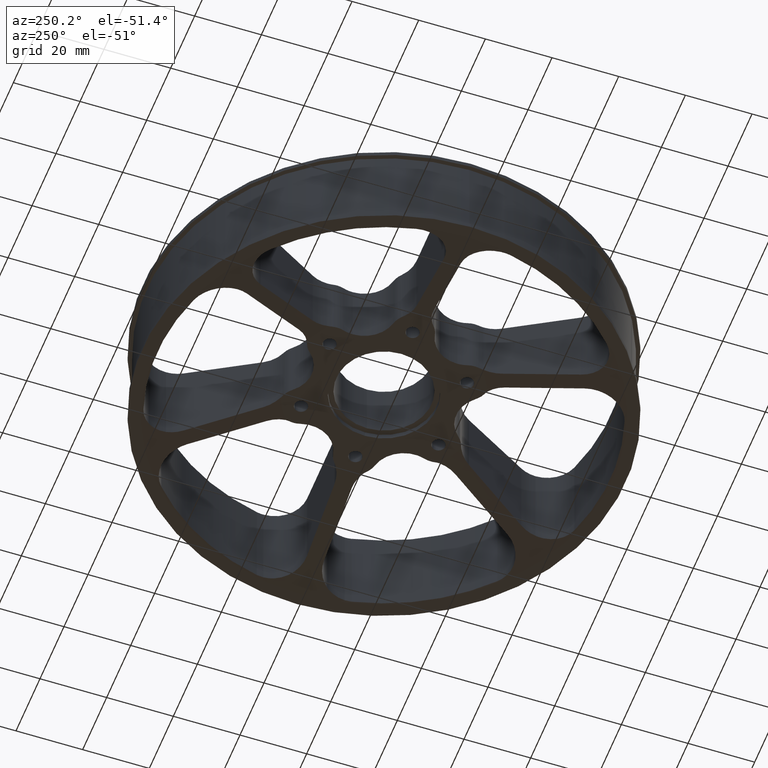
[diagram: clean part render]
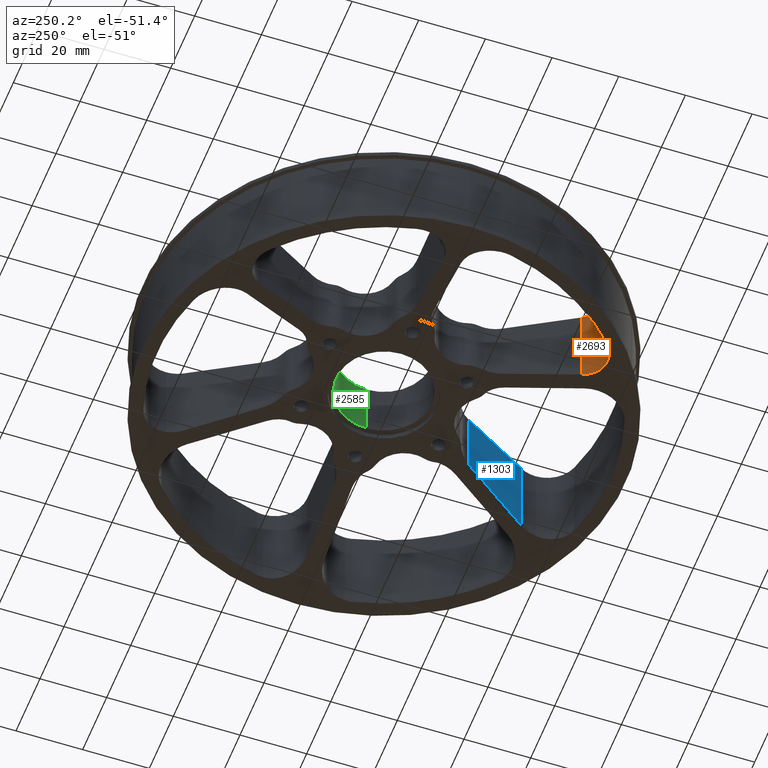
[diagram: same view with three faces highlighted in distinct colors, each labeled with its STEP entity id]
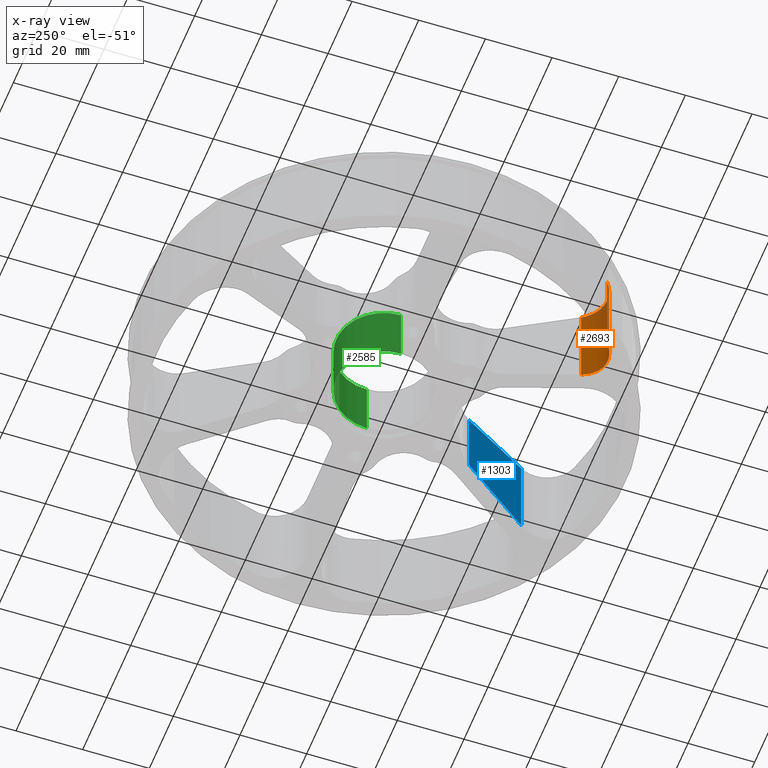
[diagram: x-ray of the same camera — body ghosted, the three highlighted faces saturated]
A machine part, auxiliary view with three faces highlighted in distinct colors.
The next image is the same camera in x-ray (body ghosted, the three faces saturated) — at least one of them is partly hidden behind the body in this view.
Their STEP definitions:

[orange] entity #2693 — the highlighted cylindrical surface (edge-blend (fillet) strip) has radius 9.652 mm, axis along (-0, -0, 1).
#116 = CARTESIAN_POINT ( 'NONE',  ( -1.537813510787212845, -1.703571133249299985, 1.125000000000000000 ) ) ;
#159 = CARTESIAN_POINT ( 'NONE',  ( -1.369121187961378494, -2.044360874800086769, 0.05758182101409862336 ) ) ;
#173 = CARTESIAN_POINT ( 'NONE',  ( -1.697631990576944805, -2.048629026177340329, 0.009477793478381693615 ) ) ;
#275 = CARTESIAN_POINT ( 'NONE',  ( -1.277082475238925152, -1.981400292425664844, 0.08237978376798492375 ) ) ;
#281 = DIRECTION ( 'NONE',  ( -0.0000000000000000000, -0.0000000000000000000, 1.000000000000000000 ) ) ;
#486 = CARTESIAN_POINT ( 'NONE',  ( -1.222749686435375294, -1.917864581844960448, 0.1022852634202532224 ) ) ;
#784 = VECTOR ( 'NONE', #1327, 39.37007874015748143 ) ;
#806 = CARTESIAN_POINT ( 'NONE',  ( -1.461949482608110751, -2.076187011877028255, 0.03864379365982685555 ) ) ;
#818 = CARTESIAN_POINT ( 'NONE',  ( -1.657638673986983502, -2.064463421810022847, 0.01260446237046852422 ) ) ;
#1016 = CARTESIAN_POINT ( 'NONE',  ( -1.792440584468755649, -1.985643913482299183, 0.006009615384616208943 ) ) ;
#1120 = CARTESIAN_POINT ( 'NONE',  ( -1.208723857349127018, -1.893571133249301708, 0.1090217662803021903 ) ) ;
#1138 = CARTESIAN_POINT ( 'NONE',  ( -1.588663312432264663, -2.080420196640258457, 0.01980712311060669334 ) ) ;
#1213 = VERTEX_POINT ( 'NONE', #3896 ) ;
#1280 = AXIS2_PLACEMENT_3D ( 'NONE', #116, #4028, #2197 ) ;
#1327 = DIRECTION ( 'NONE',  ( 0.0000000000000000000, 0.0000000000000000000, -1.000000000000000000 ) ) ;
#1332 = EDGE_CURVE ( 'NONE', #3479, #1213, #2247, .T. ) ;
#1442 = CARTESIAN_POINT ( 'NONE',  ( -1.297979649083905063, -1.999660972226012134, 0.07597018140800176900 ) ) ;
#1456 = CARTESIAN_POINT ( 'NONE',  ( -1.344578831383624662, -2.031069387294142103, 0.06351105622040965903 ) ) ;
#1467 = CARTESIAN_POINT ( 'NONE',  ( -1.747825251884096209, -2.021543015230148566, 0.006678401742229635868 ) ) ;
#1749 = CARTESIAN_POINT ( 'NONE',  ( -1.208723857349127018, -1.893571133249301708, 1.125000000000000000 ) ) ;
#1783 = CARTESIAN_POINT ( 'NONE',  ( -1.503591954028382194, -2.083071673645878086, 0.03149898300720573724 ) ) ;
#1821 = ORIENTED_EDGE ( 'NONE', *, *, #3740, .F. ) ;
#1848 = LINE ( 'NONE', #2790, #784 ) ;
#1855 = VERTEX_POINT ( 'NONE', #3524 ) ;
#1857 = EDGE_CURVE ( 'NONE', #1855, #3479, #3302, .T. ) ;
#1895 = CYLINDRICAL_SURFACE ( 'NONE', #4070, 0.3800000000000000600 ) ;
#2049 = EDGE_LOOP ( 'NONE', ( #2500, #3037, #1821, #3665 ) ) ;
#2059 = VERTEX_POINT ( 'NONE', #2587 ) ;
#2102 = CARTESIAN_POINT ( 'NONE',  ( -1.671089567941404619, -2.059723331815689562, 0.01146111758689646529 ) ) ;
#2116 = CARTESIAN_POINT ( 'NONE',  ( -1.710520045632442310, -2.042356043043110692, 0.008653585715785365104 ) ) ;
#2197 = DIRECTION ( 'NONE',  ( 1.000000000000000000, 0.0000000000000000000, 0.0000000000000000000 ) ) ;
#2212 = CARTESIAN_POINT ( 'NONE',  ( -1.531718406445995662, -2.084593541179424303, 0.02723059828186365564 ) ) ;
#2247 = LINE ( 'NONE', #1749, #2523 ) ;
#2327 = CIRCLE ( 'NONE', #1280, 0.3800000000000000600 ) ;
#2411 = CARTESIAN_POINT ( 'NONE',  ( -1.537813510787212845, -1.703571133249299985, 0.0000000000000000000 ) ) ;
#2415 = CARTESIAN_POINT ( 'NONE',  ( -1.381725332369270864, -2.050315321934899515, 0.05470492884179486981 ) ) ;
#2431 = CARTESIAN_POINT ( 'NONE',  ( -1.574472117804343707, -2.082068098814433998, 0.02155503792358580764 ) ) ;
#2432 = CARTESIAN_POINT ( 'NONE',  ( -1.208723857349127018, -1.893571133249301708, 0.1090217662803021903 ) ) ;
#2500 = ORIENTED_EDGE ( 'NONE', *, *, #1857, .F. ) ;
#2523 = VECTOR ( 'NONE', #3691, 39.37007874015748143 ) ;
#2587 = CARTESIAN_POINT ( 'NONE',  ( -1.792440584468755649, -1.985643913482299183, 1.125000000000000000 ) ) ;
#2693 = ADVANCED_FACE ( 'NONE', ( #3171 ), #1895, .F. ) ;
#2736 = CARTESIAN_POINT ( 'NONE',  ( -1.448101248479610970, -2.073100424637317474, 0.04116182191688687320 ) ) ;
#2751 = CARTESIAN_POINT ( 'NONE',  ( -1.630392436859937622, -2.072394202112499695, 0.01518726926310748696 ) ) ;
#2790 = CARTESIAN_POINT ( 'NONE',  ( -1.792440584468755649, -1.985643913482299183, 0.0000000000000000000 ) ) ;
#2963 = EDGE_CURVE ( 'NONE', #2059, #1855, #1848, .T. ) ;
#3037 = ORIENTED_EDGE ( 'NONE', *, *, #2963, .F. ) ;
#3063 = DIRECTION ( 'NONE',  ( 1.000000000000000000, 0.0000000000000000000, 0.0000000000000000000 ) ) ;
#3066 = CARTESIAN_POINT ( 'NONE',  ( -1.239493944932458014, -1.940584110140775032, 0.09551724985830793713 ) ) ;
#3171 = FACE_OUTER_BOUND ( 'NONE', #2049, .T. ) ;
#3302 = B_SPLINE_CURVE_WITH_KNOTS ( 'NONE', 3,
 ( #1016, #3748, #1467, #2116, #173, #2102, #818, #2751, #3396, #1138, #2431, #2212, #1783, #806, #2736, #4038, #3727, #2415, #159, #1456, #3715, #1442, #275, #3066, #486, #1120 ),
 .UNSPECIFIED., .F., .F.,
 ( 4, 2, 2, 2, 2, 2, 2, 2, 2, 2, 2, 2, 4 ),
 ( 5.421010862427522170E-20, 0.002168415278682575206, 0.003252622918023859340, 0.004336830557365143474, 0.005421038196706426740, 0.006505245836047710874, 0.008673661114730280008, 0.009757868754071552866, 0.01084207639341282572, 0.01192628403275409685, 0.01301049167209536971, 0.01517890695077791022, 0.01734732222946044899 ),
 .UNSPECIFIED. ) ;
#3396 = CARTESIAN_POINT ( 'NONE',  ( -1.616597043591029514, -2.075584673143930026, 0.01662676016590336828 ) ) ;
#3479 = VERTEX_POINT ( 'NONE', #2432 ) ;
#3524 = CARTESIAN_POINT ( 'NONE',  ( -1.792440584468755649, -1.985643913482299183, 0.006009615384616208943 ) ) ;
#3665 = ORIENTED_EDGE ( 'NONE', *, *, #1332, .F. ) ;
#3691 = DIRECTION ( 'NONE',  ( -0.0000000000000000000, -0.0000000000000000000, 1.000000000000000000 ) ) ;
#3715 = CARTESIAN_POINT ( 'NONE',  ( -1.332597009147856504, -2.023701662793262912, 0.06657530022539938364 ) ) ;
#3727 = CARTESIAN_POINT ( 'NONE',  ( -1.407599759183411958, -2.060837743391263910, 0.04911969333429180157 ) ) ;
#3740 = EDGE_CURVE ( 'NONE', #1213, #2059, #2327, .T. ) ;
#3748 = CARTESIAN_POINT ( 'NONE',  ( -1.771010582761333385, -2.004988774121615247, 0.006009615384616209810 ) ) ;
#3896 = CARTESIAN_POINT ( 'NONE',  ( -1.208723857349127240, -1.893571133249301708, 1.125000000000000000 ) ) ;
#4028 = DIRECTION ( 'NONE',  ( -0.0000000000000000000, -0.0000000000000000000, -1.000000000000000000 ) ) ;
#4038 = CARTESIAN_POINT ( 'NONE',  ( -1.420869961447045471, -2.065405893146413874, 0.04641134710570007232 ) ) ;
#4070 = AXIS2_PLACEMENT_3D ( 'NONE', #2411, #281, #3063 ) ;

[blue] entity #1303 — the highlighted planar face has unit normal (0.866, 0.5, 0).
#26 = EDGE_LOOP ( 'NONE', ( #803, #3060, #3092, #1209 ) ) ;
#180 = CARTESIAN_POINT ( 'NONE',  ( 0.8857410842204547219, -1.734148560221009161, 0.1809588936208279819 ) ) ;
#212 = FACE_OUTER_BOUND ( 'NONE', #26, .T. ) ;
#352 = CARTESIAN_POINT ( 'NONE',  ( 1.249962553434775137, -2.364998650107609457, 0.0000000000000000000 ) ) ;
#445 = CARTESIAN_POINT ( 'NONE',  ( 1.249962553434775137, -2.364998650107609457, 1.125000000000000000 ) ) ;
#490 = DIRECTION ( 'NONE',  ( -0.0000000000000000000, 0.0000000000000000000, 1.000000000000000000 ) ) ;
#505 = CARTESIAN_POINT ( 'NONE',  ( 0.7359615855354697533, -1.474722858566413830, 0.2528809715653633772 ) ) ;
#530 = CARTESIAN_POINT ( 'NONE',  ( 1.035518776592210699, -1.993571133249317562, 1.125000000000000000 ) ) ;
#614 = VECTOR ( 'NONE', #4084, 39.37007874015748143 ) ;
#617 = EDGE_CURVE ( 'NONE', #3417, #2604, #3733, .T. ) ;
#803 = ORIENTED_EDGE ( 'NONE', *, *, #875, .F. ) ;
#875 = EDGE_CURVE ( 'NONE', #928, #3448, #2546, .T. ) ;
#928 = VERTEX_POINT ( 'NONE', #3084 ) ;
#934 = EDGE_CURVE ( 'NONE', #3448, #2604, #2617, .T. ) ;
#1209 = ORIENTED_EDGE ( 'NONE', *, *, #934, .F. ) ;
#1303 = ADVANCED_FACE ( 'NONE', ( #212 ), #3020, .F. ) ;
#1501 = CARTESIAN_POINT ( 'NONE',  ( 0.5861695172525817066, -1.215275385729618796, 0.3246983252277149679 ) ) ;
#1571 = LINE ( 'NONE', #1825, #614 ) ;
#1731 = DIRECTION ( 'NONE',  ( -0.4999999999999916733, 0.8660254037844434816, 0.0000000000000000000 ) ) ;
#1825 = CARTESIAN_POINT ( 'NONE',  ( 1.035518776592210699, -1.993571133249317562, 1.125000000000000000 ) ) ;
#1838 = CARTESIAN_POINT ( 'NONE',  ( 0.5861695172525814845, -1.215275385729619018, 1.125000000000000000 ) ) ;
#2463 = AXIS2_PLACEMENT_3D ( 'NONE', #352, #3678, #1731 ) ;
#2546 = B_SPLINE_CURVE_WITH_KNOTS ( 'NONE', 3,
 ( #4042, #180, #505, #3732 ),
 .UNSPECIFIED., .F., .F.,
 ( 4, 4 ),
 ( 0.01120379814011730930, 0.03467888712090324427 ),
 .UNSPECIFIED. ) ;
#2604 = VERTEX_POINT ( 'NONE', #1838 ) ;
#2617 = LINE ( 'NONE', #2767, #3388 ) ;
#2767 = CARTESIAN_POINT ( 'NONE',  ( 0.5861695172525814845, -1.215275385729619018, 0.0000000000000000000 ) ) ;
#3020 = PLANE ( 'NONE',  #2463 ) ;
#3060 = ORIENTED_EDGE ( 'NONE', *, *, #3401, .T. ) ;
#3084 = CARTESIAN_POINT ( 'NONE',  ( 1.035518776592210699, -1.993571133249317562, 0.1090217662803018850 ) ) ;
#3092 = ORIENTED_EDGE ( 'NONE', *, *, #617, .T. ) ;
#3187 = DIRECTION ( 'NONE',  ( -0.4999999999999916178, 0.8660254037844433705, 0.0000000000000000000 ) ) ;
#3388 = VECTOR ( 'NONE', #490, 39.37007874015748143 ) ;
#3401 = EDGE_CURVE ( 'NONE', #928, #3417, #1571, .T. ) ;
#3417 = VERTEX_POINT ( 'NONE', #530 ) ;
#3448 = VERTEX_POINT ( 'NONE', #1501 ) ;
#3577 = VECTOR ( 'NONE', #3187, 39.37007874015748854 ) ;
#3678 = DIRECTION ( 'NONE',  ( 0.8660254037844434816, 0.4999999999999916733, 0.0000000000000000000 ) ) ;
#3732 = CARTESIAN_POINT ( 'NONE',  ( 0.5861695172525817066, -1.215275385729618796, 0.3246983252277149679 ) ) ;
#3733 = LINE ( 'NONE', #445, #3577 ) ;
#4042 = CARTESIAN_POINT ( 'NONE',  ( 1.035518776592210699, -1.993571133249317562, 0.1090217662803018850 ) ) ;
#4084 = DIRECTION ( 'NONE',  ( -0.0000000000000000000, -0.0000000000000000000, 1.000000000000000000 ) ) ;

[green] entity #2585 — the highlighted cylindrical surface (partial cylindrical patch) has radius 14.2875 mm, axis along (-0, -0, -1).
#86 = ORIENTED_EDGE ( 'NONE', *, *, #177, .F. ) ;
#101 = CARTESIAN_POINT ( 'NONE',  ( 5.357829746269672593E-17, 0.0000000000000000000, 0.4375000000000001665 ) ) ;
#106 = VERTEX_POINT ( 'NONE', #2113 ) ;
#177 = EDGE_CURVE ( 'NONE', #106, #3547, #1500, .T. ) ;
#185 = DIRECTION ( 'NONE',  ( -1.224646799147353454E-16, -0.0000000000000000000, -1.000000000000000000 ) ) ;
#195 = FACE_OUTER_BOUND ( 'NONE', #629, .T. ) ;
#228 = EDGE_CURVE ( 'NONE', #3547, #2494, #650, .T. ) ;
#435 = DIRECTION ( 'NONE',  ( -1.000000000000000000, 0.0000000000000000000, 1.214154663850783406E-16 ) ) ;
#629 = EDGE_LOOP ( 'NONE', ( #86, #3316, #3612, #1916 ) ) ;
#650 = CIRCLE ( 'NONE', #726, 0.5625000000000001110 ) ;
#726 = AXIS2_PLACEMENT_3D ( 'NONE', #101, #3014, #435 ) ;
#793 = CARTESIAN_POINT ( 'NONE',  ( 0.5625000000000001110, 6.888638245203861944E-17, 0.4375000000000001110 ) ) ;
#1160 = DIRECTION ( 'NONE',  ( -1.000000000000000000, 0.0000000000000000000, 2.428309327701566812E-16 ) ) ;
#1164 = CARTESIAN_POINT ( 'NONE',  ( -0.5624999999999998890, 0.0000000000000000000, 1.125000000000000888 ) ) ;
#1183 = DIRECTION ( 'NONE',  ( -1.224646799147353454E-16, 0.0000000000000000000, -1.000000000000000000 ) ) ;
#1293 = LINE ( 'NONE', #1164, #2402 ) ;
#1318 = CARTESIAN_POINT ( 'NONE',  ( -0.5625000000000000000, 0.0000000000000000000, 0.4375000000000002776 ) ) ;
#1333 = AXIS2_PLACEMENT_3D ( 'NONE', #3434, #1183, #1160 ) ;
#1500 = LINE ( 'NONE', #3482, #2717 ) ;
#1916 = ORIENTED_EDGE ( 'NONE', *, *, #228, .F. ) ;
#2113 = CARTESIAN_POINT ( 'NONE',  ( 0.5625000000000002220, 6.888638245203861944E-17, 1.125000000000000666 ) ) ;
#2118 = CARTESIAN_POINT ( 'NONE',  ( 1.377727649040773375E-16, 0.0000000000000000000, 1.125000000000000666 ) ) ;
#2167 = DIRECTION ( 'NONE',  ( -1.224646799147353454E-16, -0.0000000000000000000, -1.000000000000000000 ) ) ;
#2342 = VERTEX_POINT ( 'NONE', #2986 ) ;
#2402 = VECTOR ( 'NONE', #185, 39.37007874015748143 ) ;
#2494 = VERTEX_POINT ( 'NONE', #1318 ) ;
#2585 = ADVANCED_FACE ( 'NONE', ( #195 ), #3422, .F. ) ;
#2683 = AXIS2_PLACEMENT_3D ( 'NONE', #2118, #2167, #3109 ) ;
#2717 = VECTOR ( 'NONE', #3241, 39.37007874015748143 ) ;
#2735 = EDGE_CURVE ( 'NONE', #2342, #2494, #1293, .T. ) ;
#2986 = CARTESIAN_POINT ( 'NONE',  ( -0.5624999999999998890, 0.0000000000000000000, 1.125000000000000888 ) ) ;
#3014 = DIRECTION ( 'NONE',  ( 1.224646799147353454E-16, -0.0000000000000000000, 1.000000000000000000 ) ) ;
#3094 = EDGE_CURVE ( 'NONE', #2342, #106, #3919, .T. ) ;
#3109 = DIRECTION ( 'NONE',  ( -1.000000000000000000, 0.0000000000000000000, 2.428309327701566812E-16 ) ) ;
#3241 = DIRECTION ( 'NONE',  ( -1.224646799147353454E-16, -0.0000000000000000000, -1.000000000000000000 ) ) ;
#3316 = ORIENTED_EDGE ( 'NONE', *, *, #3094, .F. ) ;
#3422 = CYLINDRICAL_SURFACE ( 'NONE', #2683, 0.5625000000000001110 ) ;
#3434 = CARTESIAN_POINT ( 'NONE',  ( 1.377727649040773375E-16, 0.0000000000000000000, 1.125000000000000666 ) ) ;
#3482 = CARTESIAN_POINT ( 'NONE',  ( 0.5625000000000002220, 6.888638245203861944E-17, 1.125000000000000666 ) ) ;
#3547 = VERTEX_POINT ( 'NONE', #793 ) ;
#3612 = ORIENTED_EDGE ( 'NONE', *, *, #2735, .T. ) ;
#3919 = CIRCLE ( 'NONE', #1333, 0.5625000000000001110 ) ;